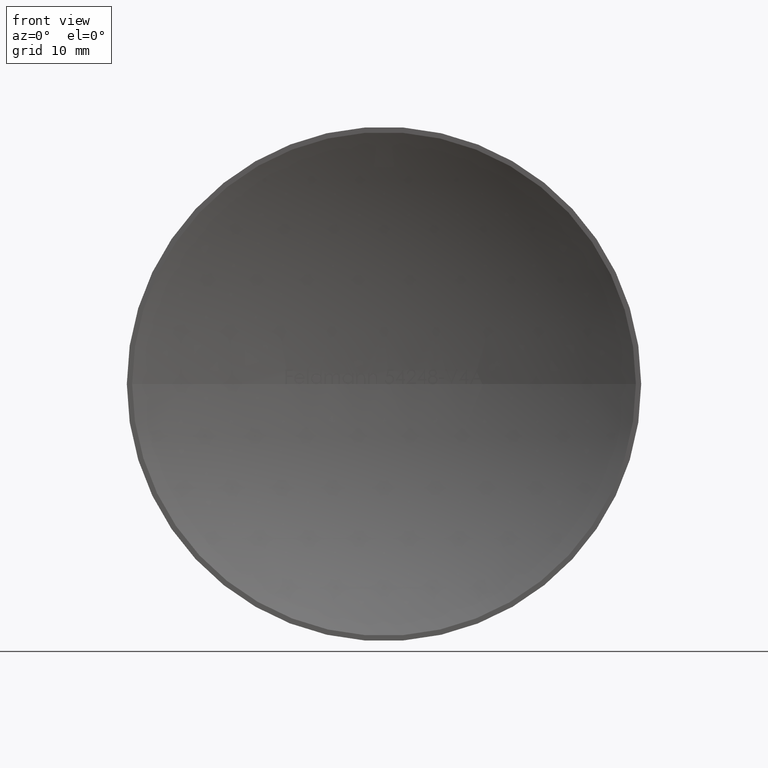
[diagram: clean part render]
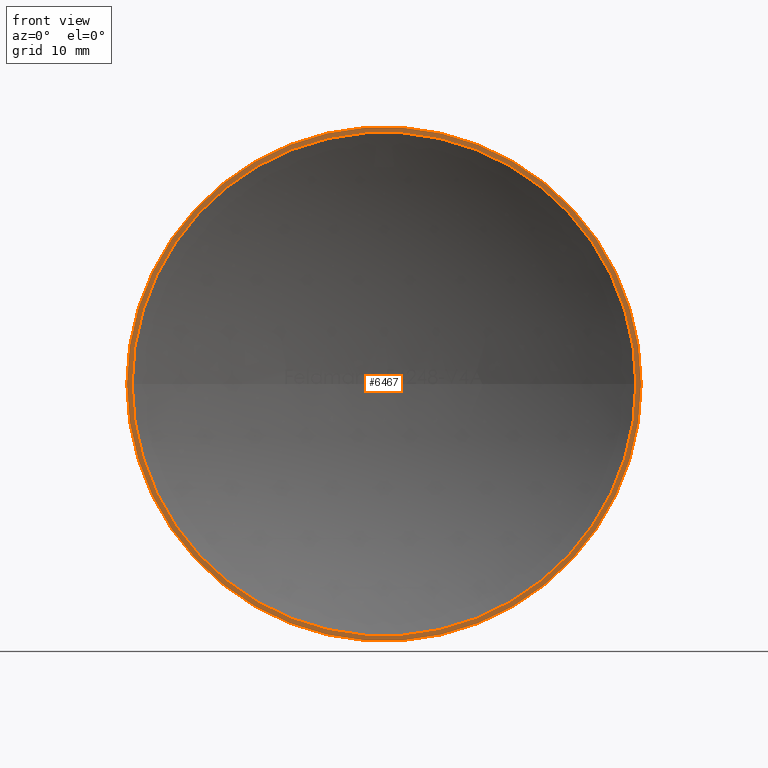
[diagram: same view with one face highlighted and labeled with its STEP entity id]
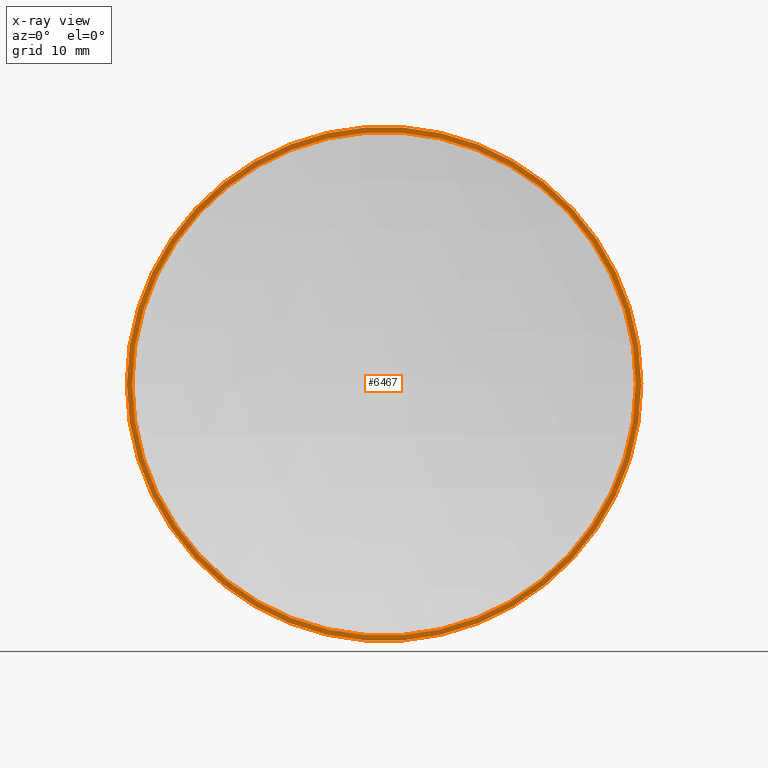
[diagram: x-ray of the same camera — body ghosted, the highlighted face saturated]
A machine part, front view. The second image highlights one B-rep face of the part: STEP entity #6467.
The next image is the same camera in x-ray: the body ghosted, the highlighted face saturated — about 0% of this face is hidden behind the body in this view.
In plain terms, the highlighted planar face has unit normal (-0, -1, 0).
Its self-contained STEP definition (entity closure, byte-faithful):
#136 = CARTESIAN_POINT ( 'NONE',  ( 24.15000000000000200, -3.289773810250057000E-015, 0.0000000000000000000 ) ) ;
#228 = VERTEX_POINT ( 'NONE', #5445 ) ;
#1424 = EDGE_CURVE ( 'NONE', #7655, #11305, #3898, .T. ) ;
#2046 = CARTESIAN_POINT ( 'NONE',  ( -4.391605500818018500E-014, 1.665334536937734800E-013, 0.0000000000000000000 ) ) ;
#2440 = AXIS2_PLACEMENT_3D ( 'NONE', #2046, #8546, #2968 ) ;
#2558 = AXIS2_PLACEMENT_3D ( 'NONE', #11031, #7415, #9285 ) ;
#2815 = CIRCLE ( 'NONE', #5318, 24.15000000000004500 ) ;
#2968 = DIRECTION ( 'NONE',  ( 1.000000000000000000, -7.319342501363578300E-015, 0.0000000000000000000 ) ) ;
#3032 = ORIENTED_EDGE ( 'NONE', *, *, #1424, .T. ) ;
#3083 = DIRECTION ( 'NONE',  ( 1.000000000000000000, -7.319342501363578300E-015, 0.0000000000000000000 ) ) ;
#3898 = CIRCLE ( 'NONE', #2558, 24.15000000000004500 ) ;
#3906 = ORIENTED_EDGE ( 'NONE', *, *, #5941, .T. ) ;
#4602 = CARTESIAN_POINT ( 'NONE',  ( -4.391605500818014100E-014, 1.734723475976807100E-013, 0.0000000000000000000 ) ) ;
#4750 = EDGE_CURVE ( 'NONE', #11364, #228, #11514, .T. ) ;
#5318 = AXIS2_PLACEMENT_3D ( 'NONE', #4602, #5543, #6480 ) ;
#5422 = CARTESIAN_POINT ( 'NONE',  ( -24.15000000000009100, 3.502344690056114000E-013, 2.957522019940864600E-015 ) ) ;
#5431 = EDGE_LOOP ( 'NONE', ( #3906, #3032 ) ) ;
#5445 = CARTESIAN_POINT ( 'NONE',  ( -23.64788574058970700, 3.398131150768590300E-013, 0.0000000000000000000 ) ) ;
#5543 = DIRECTION ( 'NONE',  ( -7.319342501363578300E-015, -1.000000000000000000, -0.0000000000000000000 ) ) ;
#5648 = DIRECTION ( 'NONE',  ( 1.000000000000000000, -7.319342501363578300E-015, 0.0000000000000000000 ) ) ;
#5941 = EDGE_CURVE ( 'NONE', #11305, #7655, #2815, .T. ) ;
#5974 = CARTESIAN_POINT ( 'NONE',  ( 24.15000000000000200, -6.938861931537636400E-015, 0.0000000000000000000 ) ) ;
#6467 = ADVANCED_FACE ( 'NONE', ( #10378, #9939 ), #8778, .T. ) ;
#6480 = DIRECTION ( 'NONE',  ( 1.000000000000000000, -7.319342501363579900E-015, 0.0000000000000000000 ) ) ;
#7188 = CIRCLE ( 'NONE', #2440, 23.64788574059004100 ) ;
#7415 = DIRECTION ( 'NONE',  ( -7.319342501363578300E-015, -1.000000000000000000, -0.0000000000000000000 ) ) ;
#7655 = VERTEX_POINT ( 'NONE', #5422 ) ;
#7820 = EDGE_CURVE ( 'NONE', #228, #11364, #7188, .T. ) ;
#8131 = EDGE_LOOP ( 'NONE', ( #11120, #8314 ) ) ;
#8314 = ORIENTED_EDGE ( 'NONE', *, *, #4750, .F. ) ;
#8357 = CARTESIAN_POINT ( 'NONE',  ( -4.391605500818018500E-014, 1.665334536937734800E-013, 0.0000000000000000000 ) ) ;
#8504 = CARTESIAN_POINT ( 'NONE',  ( 23.64788574058999200, -6.746207689312076300E-015, -2.896030757881546500E-015 ) ) ;
#8546 = DIRECTION ( 'NONE',  ( -7.319342501363578300E-015, -1.000000000000000000, -0.0000000000000000000 ) ) ;
#8593 = AXIS2_PLACEMENT_3D ( 'NONE', #5974, #9579, #3083 ) ;
#8778 = PLANE ( 'NONE',  #8593 ) ;
#9285 = DIRECTION ( 'NONE',  ( 1.000000000000000000, -7.319342501363579900E-015, 0.0000000000000000000 ) ) ;
#9357 = AXIS2_PLACEMENT_3D ( 'NONE', #8357, #10193, #5648 ) ;
#9579 = DIRECTION ( 'NONE',  ( -7.319342501363578300E-015, -1.000000000000000000, 0.0000000000000000000 ) ) ;
#9939 = FACE_BOUND ( 'NONE', #8131, .T. ) ;
#10193 = DIRECTION ( 'NONE',  ( -7.319342501363578300E-015, -1.000000000000000000, -0.0000000000000000000 ) ) ;
#10378 = FACE_OUTER_BOUND ( 'NONE', #5431, .T. ) ;
#11031 = CARTESIAN_POINT ( 'NONE',  ( -4.391605500818014100E-014, 1.734723475976807100E-013, 0.0000000000000000000 ) ) ;
#11120 = ORIENTED_EDGE ( 'NONE', *, *, #7820, .F. ) ;
#11305 = VERTEX_POINT ( 'NONE', #136 ) ;
#11364 = VERTEX_POINT ( 'NONE', #8504 ) ;
#11514 = CIRCLE ( 'NONE', #9357, 23.64788574059004100 ) ;